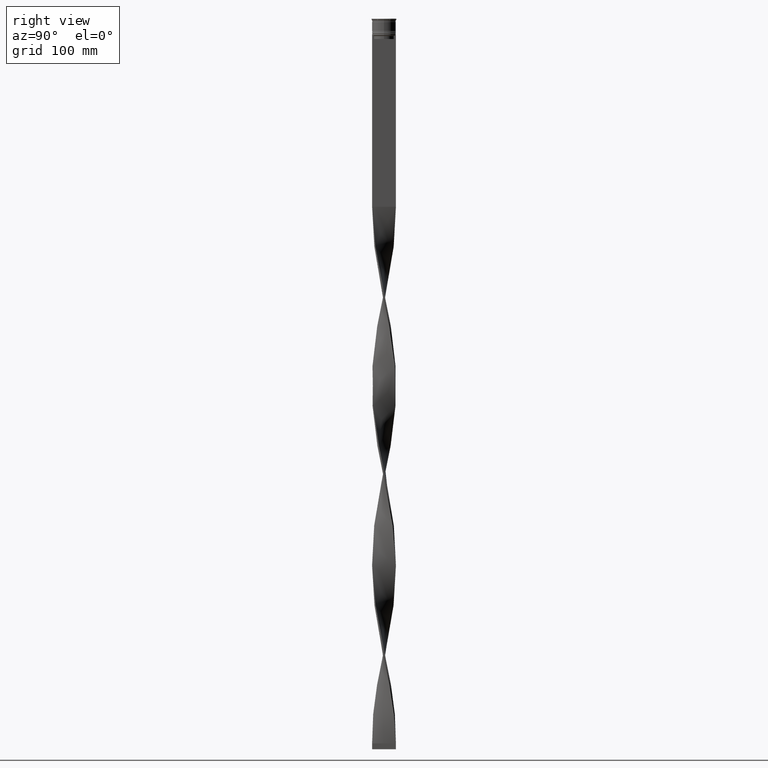
[diagram: clean part render]
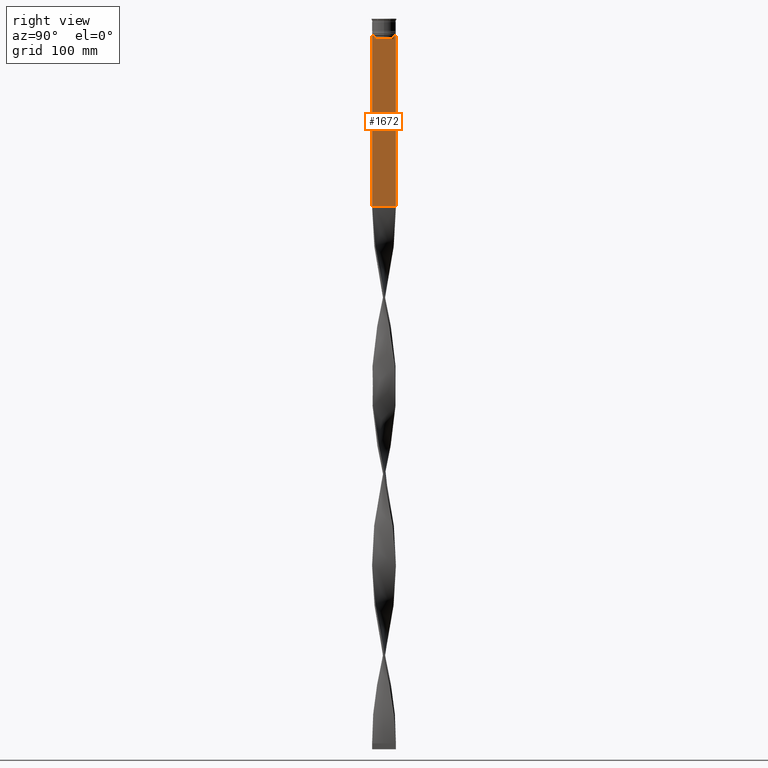
[diagram: same view with one face highlighted and labeled with its STEP entity id]
A machine part, right view. The second image highlights one B-rep face of the part: STEP entity #1672.
In plain terms, the highlighted planar face has unit normal (-1, 0, 0).
Its self-contained STEP definition (entity closure, byte-faithful):
#18 = CARTESIAN_POINT ( 'NONE',  ( 0.7500000000000001110, 8.533766897779925031, -14.33335221373273605 ) ) ;
#20 = CARTESIAN_POINT ( 'NONE',  ( 0.7500000000000001110, 9.999999999999998224, 6.056171120131581098 ) ) ;
#29 = DIRECTION ( 'NONE',  ( 0.000000000000000000, -1.000000000000000000, 0.000000000000000000 ) ) ;
#40 = CARTESIAN_POINT ( 'NONE',  ( 0.7500000000000001110, 8.366450860430608927, -14.50000000000000000 ) ) ;
#104 = DIRECTION ( 'NONE',  ( 0.000000000000000000, -1.000000000000000000, 0.000000000000000000 ) ) ;
#106 = ORIENTED_EDGE ( 'NONE', *, *, #888, .T. ) ;
#108 = CARTESIAN_POINT ( 'NONE',  ( 0.7500000000000001110, -8.868342573446296839, -14.00000000000000178 ) ) ;
#213 = EDGE_CURVE ( 'NONE', #1582, #1890, #3833, .T. ) ;
#260 = EDGE_CURVE ( 'NONE', #4533, #2790, #4271, .T. ) ;
#262 = CARTESIAN_POINT ( 'NONE',  ( 0.7500000000000001110, 9.871550030263739117, -14.00000000000000178 ) ) ;
#270 = VERTEX_POINT ( 'NONE', #3522 ) ;
#283 = ORIENTED_EDGE ( 'NONE', *, *, #3628, .T. ) ;
#327 = DIRECTION ( 'NONE',  ( 0.000000000000000000, 0.000000000000000000, -1.000000000000000000 ) ) ;
#461 = CARTESIAN_POINT ( 'NONE',  ( 0.7500000000000001110, -8.533766903463440912, -14.33335220807192023 ) ) ;
#462 = CARTESIAN_POINT ( 'NONE',  ( 0.7500000000000001110, -10.00000000000000533, -14.00000000000000178 ) ) ;
#478 = VERTEX_POINT ( 'NONE', #2317 ) ;
#487 = CARTESIAN_POINT ( 'NONE',  ( 0.7500000000000001110, -8.366450860430608927, -17.00000000000000000 ) ) ;
#506 = CARTESIAN_POINT ( 'NONE',  ( 0.7500000000000001110, -10.00000000000000533, -157.9999999999999716 ) ) ;
#572 = PLANE ( 'NONE',  #3914 ) ;
#605 = VERTEX_POINT ( 'NONE', #262 ) ;
#673 = CARTESIAN_POINT ( 'NONE',  ( 0.7500000000000001110, 8.366450860430608927, 0.000000000000000000 ) ) ;
#677 = VERTEX_POINT ( 'NONE', #2841 ) ;
#722 = DIRECTION ( 'NONE',  ( 0.000000000000000000, -1.000000000000000000, 0.000000000000000000 ) ) ;
#736 = CARTESIAN_POINT ( 'NONE',  ( 0.7500000000000001110, -10.00000000000000533, -14.00000000000000178 ) ) ;
#858 = VERTEX_POINT ( 'NONE', #2909 ) ;
#888 = EDGE_CURVE ( 'NONE', #677, #1582, #4178, .T. ) ;
#893 = VERTEX_POINT ( 'NONE', #462 ) ;
#937 = DIRECTION ( 'NONE',  ( 0.000000000000000000, 0.000000000000000000, 1.000000000000000000 ) ) ;
#938 = CARTESIAN_POINT ( 'NONE',  ( 0.7500000000000001110, -9.871550030263739117, -14.00000000000000178 ) ) ;
#1072 = ORIENTED_EDGE ( 'NONE', *, *, #213, .T. ) ;
#1097 = ORIENTED_EDGE ( 'NONE', *, *, #1515, .T. ) ;
#1102 = CARTESIAN_POINT ( 'NONE',  ( 0.7500000000000001110, -10.00000000000000533, -14.00000000000000178 ) ) ;
#1257 = ORIENTED_EDGE ( 'NONE', *, *, #2832, .T. ) ;
#1258 = VECTOR ( 'NONE', #327, 1000.000000000000000 ) ;
#1325 = VECTOR ( 'NONE', #104, 1000.000000000000000 ) ;
#1364 = EDGE_CURVE ( 'NONE', #2790, #893, #4262, .T. ) ;
#1515 = EDGE_CURVE ( 'NONE', #3676, #1570, #3247, .T. ) ;
#1559 = CARTESIAN_POINT ( 'NONE',  ( 0.7500000000000001110, -8.868342573446296839, -14.00000000000000178 ) ) ;
#1570 = VERTEX_POINT ( 'NONE', #3293 ) ;
#1582 = VERTEX_POINT ( 'NONE', #4081 ) ;
#1672 = ADVANCED_FACE ( 'NONE', ( #3751 ), #572, .F. ) ;
#1684 = LINE ( 'NONE', #4189, #2589 ) ;
#1739 = DIRECTION ( 'NONE',  ( 0.000000000000000000, -1.000000000000000000, 0.000000000000000000 ) ) ;
#1766 = VECTOR ( 'NONE', #722, 1000.000000000000000 ) ;
#1803 = EDGE_LOOP ( 'NONE', ( #283, #106, #1072, #4215, #1097, #2561, #3845, #3333, #1257, #2165, #4161, #3740 ) ) ;
#1816 = DIRECTION ( 'NONE',  ( 0.000000000000000000, 0.000000000000000000, -1.000000000000000000 ) ) ;
#1821 = LINE ( 'NONE', #3891, #3766 ) ;
#1853 = CARTESIAN_POINT ( 'NONE',  ( 0.7500000000000001110, -8.701063080777121428, -14.16668447713511725 ) ) ;
#1890 = VERTEX_POINT ( 'NONE', #3511 ) ;
#1897 = B_SPLINE_CURVE_WITH_KNOTS ( 'NONE', 3,
 ( #3312, #461, #1853, #108 ),
 .UNSPECIFIED., .F., .F.,
 ( 4, 4 ),
 ( 0.03866293624047253963, 0.03937282246709320616 ),
 .UNSPECIFIED. ) ;
#1898 = CARTESIAN_POINT ( 'NONE',  ( 0.7500000000000001110, 8.701063075415250481, -14.16668448247791545 ) ) ;
#1945 = CARTESIAN_POINT ( 'NONE',  ( 0.7500000000000001110, -10.00000000000000533, 6.056171120131581098 ) ) ;
#2062 = EDGE_CURVE ( 'NONE', #858, #605, #1821, .T. ) ;
#2064 = VECTOR ( 'NONE', #1816, 1000.000000000000000 ) ;
#2122 = EDGE_CURVE ( 'NONE', #1890, #3676, #2218, .T. ) ;
#2165 = ORIENTED_EDGE ( 'NONE', *, *, #3591, .T. ) ;
#2183 = EDGE_CURVE ( 'NONE', #858, #270, #3598, .T. ) ;
#2198 = DIRECTION ( 'NONE',  ( -0.000000000000000000, -0.000000000000000000, 1.000000000000000000 ) ) ;
#2218 = LINE ( 'NONE', #2542, #1325 ) ;
#2317 = CARTESIAN_POINT ( 'NONE',  ( 0.7500000000000001110, -10.00000000000000533, -157.9999999999999716 ) ) ;
#2360 = VECTOR ( 'NONE', #1739, 1000.000000000000000 ) ;
#2486 = DIRECTION ( 'NONE',  ( 0.000000000000000000, -1.000000000000000000, 0.000000000000000000 ) ) ;
#2542 = CARTESIAN_POINT ( 'NONE',  ( 0.7500000000000001110, 8.400000000000003908, -17.00000000000000000 ) ) ;
#2561 = ORIENTED_EDGE ( 'NONE', *, *, #3724, .T. ) ;
#2589 = VECTOR ( 'NONE', #2755, 1000.000000000000000 ) ;
#2755 = DIRECTION ( 'NONE',  ( 0.000000000000000000, 0.000000000000000000, -1.000000000000000000 ) ) ;
#2790 = VERTEX_POINT ( 'NONE', #938 ) ;
#2832 = EDGE_CURVE ( 'NONE', #893, #478, #1684, .T. ) ;
#2841 = CARTESIAN_POINT ( 'NONE',  ( 0.7500000000000001110, 8.868342573446296839, -14.00000000000000178 ) ) ;
#2909 = CARTESIAN_POINT ( 'NONE',  ( 0.7500000000000001110, 9.999999999999998224, -14.00000000000000178 ) ) ;
#3172 = VECTOR ( 'NONE', #29, 1000.000000000000000 ) ;
#3247 = LINE ( 'NONE', #3895, #3614 ) ;
#3293 = CARTESIAN_POINT ( 'NONE',  ( 0.7500000000000001110, -8.366450860430608927, -14.50000000000000000 ) ) ;
#3312 = CARTESIAN_POINT ( 'NONE',  ( 0.7500000000000001110, -8.366450860430608927, -14.50000000000000000 ) ) ;
#3333 = ORIENTED_EDGE ( 'NONE', *, *, #1364, .T. ) ;
#3511 = CARTESIAN_POINT ( 'NONE',  ( 0.7500000000000001110, 8.366450860430608927, -17.00000000000000000 ) ) ;
#3522 = CARTESIAN_POINT ( 'NONE',  ( 0.7500000000000002220, 9.999999999999998224, -157.9999999999999716 ) ) ;
#3584 = CARTESIAN_POINT ( 'NONE',  ( 0.7500000000000001110, -10.00000000000000533, -14.00000000000000178 ) ) ;
#3591 = EDGE_CURVE ( 'NONE', #478, #270, #4314, .T. ) ;
#3598 = LINE ( 'NONE', #20, #2064 ) ;
#3614 = VECTOR ( 'NONE', #2198, 1000.000000000000000 ) ;
#3628 = EDGE_CURVE ( 'NONE', #605, #677, #4222, .T. ) ;
#3676 = VERTEX_POINT ( 'NONE', #487 ) ;
#3724 = EDGE_CURVE ( 'NONE', #1570, #4533, #1897, .T. ) ;
#3740 = ORIENTED_EDGE ( 'NONE', *, *, #2062, .T. ) ;
#3751 = FACE_OUTER_BOUND ( 'NONE', #1803, .T. ) ;
#3766 = VECTOR ( 'NONE', #2486, 1000.000000000000000 ) ;
#3833 = LINE ( 'NONE', #673, #1258 ) ;
#3845 = ORIENTED_EDGE ( 'NONE', *, *, #260, .T. ) ;
#3891 = CARTESIAN_POINT ( 'NONE',  ( 0.7500000000000001110, -10.00000000000000533, -14.00000000000000178 ) ) ;
#3895 = CARTESIAN_POINT ( 'NONE',  ( 0.7500000000000001110, -8.366450860430608927, 0.000000000000000000 ) ) ;
#3914 = AXIS2_PLACEMENT_3D ( 'NONE', #1945, #4384, #937 ) ;
#4081 = CARTESIAN_POINT ( 'NONE',  ( 0.7500000000000001110, 8.366450860430608927, -14.50000000000000000 ) ) ;
#4161 = ORIENTED_EDGE ( 'NONE', *, *, #2183, .F. ) ;
#4178 = B_SPLINE_CURVE_WITH_KNOTS ( 'NONE', 3,
 ( #4356, #1898, #18, #40 ),
 .UNSPECIFIED., .F., .F.,
 ( 4, 4 ),
 ( 0.01512225952876174867, 0.01583070519299695222 ),
 .UNSPECIFIED. ) ;
#4189 = CARTESIAN_POINT ( 'NONE',  ( 0.7500000000000001110, -10.00000000000000533, 6.056171120131581098 ) ) ;
#4215 = ORIENTED_EDGE ( 'NONE', *, *, #2122, .T. ) ;
#4222 = LINE ( 'NONE', #3584, #2360 ) ;
#4262 = LINE ( 'NONE', #736, #3172 ) ;
#4271 = LINE ( 'NONE', #1102, #1766 ) ;
#4314 = LINE ( 'NONE', #506, #4515 ) ;
#4356 = CARTESIAN_POINT ( 'NONE',  ( 0.7500000000000001110, 8.868342573446296839, -14.00000000000000178 ) ) ;
#4384 = DIRECTION ( 'NONE',  ( -1.000000000000000000, 0.000000000000000000, 0.000000000000000000 ) ) ;
#4515 = VECTOR ( 'NONE', #4569, 1000.000000000000000 ) ;
#4533 = VERTEX_POINT ( 'NONE', #1559 ) ;
#4569 = DIRECTION ( 'NONE',  ( 0.000000000000000000, 1.000000000000000000, 0.000000000000000000 ) ) ;